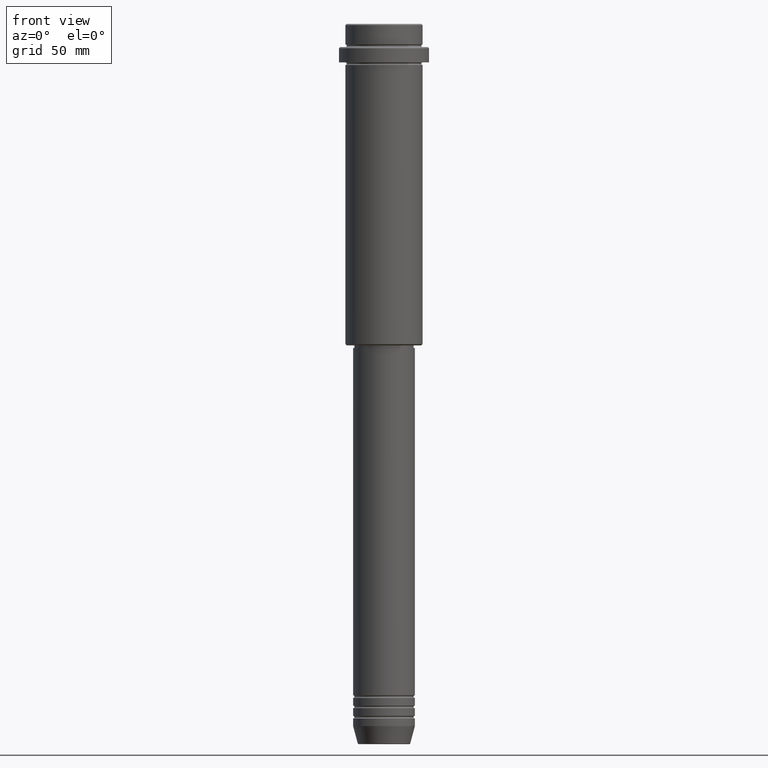
[diagram: clean part render]
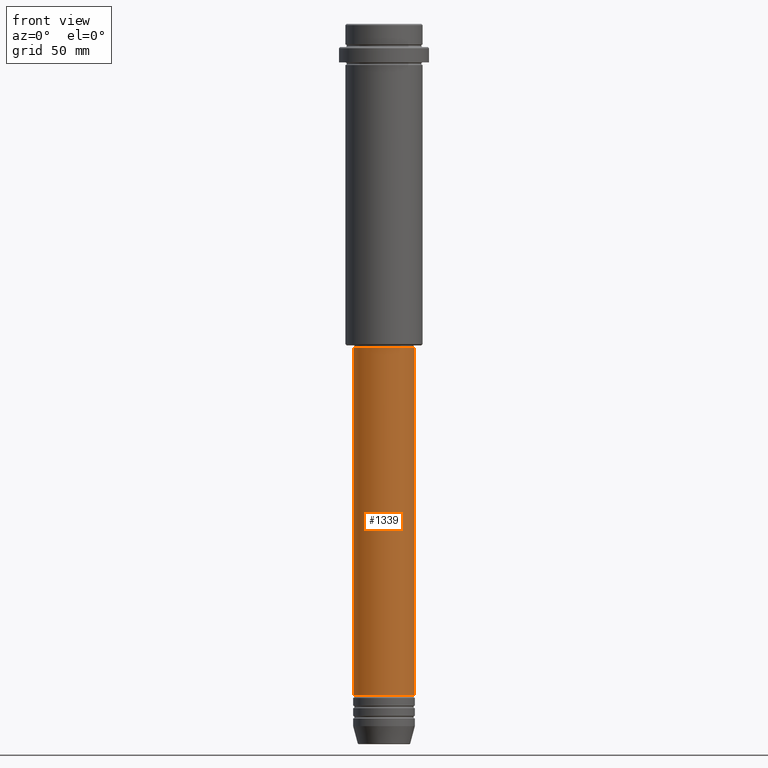
[diagram: same view with one face highlighted and labeled with its STEP entity id]
A machine part, front view. The second image highlights one B-rep face of the part: STEP entity #1339.
In plain terms, the highlighted cylindrical surface (edge-blend (fillet) strip) has radius 12 mm, axis along (-0, -0, 1).
Its self-contained STEP definition (entity closure, byte-faithful):
#2 = DIRECTION ( 'NONE',  ( 1.000000000000000000, 0.000000000000000000, 0.000000000000000000 ) ) ;
#38 = AXIS2_PLACEMENT_3D ( 'NONE', #1149, #166, #555 ) ;
#63 = EDGE_CURVE ( 'NONE', #1406, #1272, #300, .T. ) ;
#166 = DIRECTION ( 'NONE',  ( -0.000000000000000000, -0.000000000000000000, 1.000000000000000000 ) ) ;
#252 = VERTEX_POINT ( 'NONE', #832 ) ;
#268 = FACE_OUTER_BOUND ( 'NONE', #1343, .T. ) ;
#274 = ORIENTED_EDGE ( 'NONE', *, *, #983, .T. ) ;
#279 = CARTESIAN_POINT ( 'NONE',  ( 12.00000000000000000, 0.000000000000000000, -260.9999999999998863 ) ) ;
#280 = LINE ( 'NONE', #933, #1293 ) ;
#281 = EDGE_CURVE ( 'NONE', #1406, #1388, #280, .T. ) ;
#300 = CIRCLE ( 'NONE', #849, 12.00000000000000000 ) ;
#329 = DIRECTION ( 'NONE',  ( -0.000000000000000000, -0.000000000000000000, 1.000000000000000000 ) ) ;
#336 = CARTESIAN_POINT ( 'NONE',  ( -11.99999999999999822, 1.469576158976823750E-15, -126.0000000000001137 ) ) ;
#388 = AXIS2_PLACEMENT_3D ( 'NONE', #394, #503, #647 ) ;
#394 = CARTESIAN_POINT ( 'NONE',  ( 0.000000000000000000, 0.000000000000000000, -126.0000000000001137 ) ) ;
#503 = DIRECTION ( 'NONE',  ( -0.000000000000000000, -0.000000000000000000, 1.000000000000000000 ) ) ;
#555 = DIRECTION ( 'NONE',  ( 1.000000000000000000, 0.000000000000000000, 0.000000000000000000 ) ) ;
#636 = VECTOR ( 'NONE', #329, 1000.000000000000000 ) ;
#638 = DIRECTION ( 'NONE',  ( -0.000000000000000000, -0.000000000000000000, 1.000000000000000000 ) ) ;
#647 = DIRECTION ( 'NONE',  ( 1.000000000000000000, 0.000000000000000000, 0.000000000000000000 ) ) ;
#660 = CARTESIAN_POINT ( 'NONE',  ( 12.00000000000000000, 0.000000000000000000, 0.000000000000000000 ) ) ;
#670 = CARTESIAN_POINT ( 'NONE',  ( 0.000000000000000000, 0.000000000000000000, -260.9999999999998863 ) ) ;
#712 = CYLINDRICAL_SURFACE ( 'NONE', #38, 12.00000000000000000 ) ;
#715 = ORIENTED_EDGE ( 'NONE', *, *, #813, .F. ) ;
#813 = EDGE_CURVE ( 'NONE', #1388, #252, #854, .T. ) ;
#832 = CARTESIAN_POINT ( 'NONE',  ( 11.99999999999999822, 0.000000000000000000, -126.0000000000001137 ) ) ;
#849 = AXIS2_PLACEMENT_3D ( 'NONE', #670, #1195, #2 ) ;
#854 = CIRCLE ( 'NONE', #388, 11.99999999999999822 ) ;
#933 = CARTESIAN_POINT ( 'NONE',  ( -12.00000000000000000, 1.469576158976823947E-15, 0.000000000000000000 ) ) ;
#983 = EDGE_CURVE ( 'NONE', #1272, #252, #1205, .T. ) ;
#1039 = ORIENTED_EDGE ( 'NONE', *, *, #281, .F. ) ;
#1102 = CARTESIAN_POINT ( 'NONE',  ( -12.00000000000000000, 1.469576158976823947E-15, -260.9999999999998863 ) ) ;
#1149 = CARTESIAN_POINT ( 'NONE',  ( 0.000000000000000000, 0.000000000000000000, 0.000000000000000000 ) ) ;
#1195 = DIRECTION ( 'NONE',  ( -0.000000000000000000, -0.000000000000000000, 1.000000000000000000 ) ) ;
#1205 = LINE ( 'NONE', #660, #636 ) ;
#1272 = VERTEX_POINT ( 'NONE', #279 ) ;
#1293 = VECTOR ( 'NONE', #638, 1000.000000000000000 ) ;
#1311 = ORIENTED_EDGE ( 'NONE', *, *, #63, .T. ) ;
#1339 = ADVANCED_FACE ( 'NONE', ( #268 ), #712, .T. ) ;
#1343 = EDGE_LOOP ( 'NONE', ( #1039, #1311, #274, #715 ) ) ;
#1388 = VERTEX_POINT ( 'NONE', #336 ) ;
#1406 = VERTEX_POINT ( 'NONE', #1102 ) ;